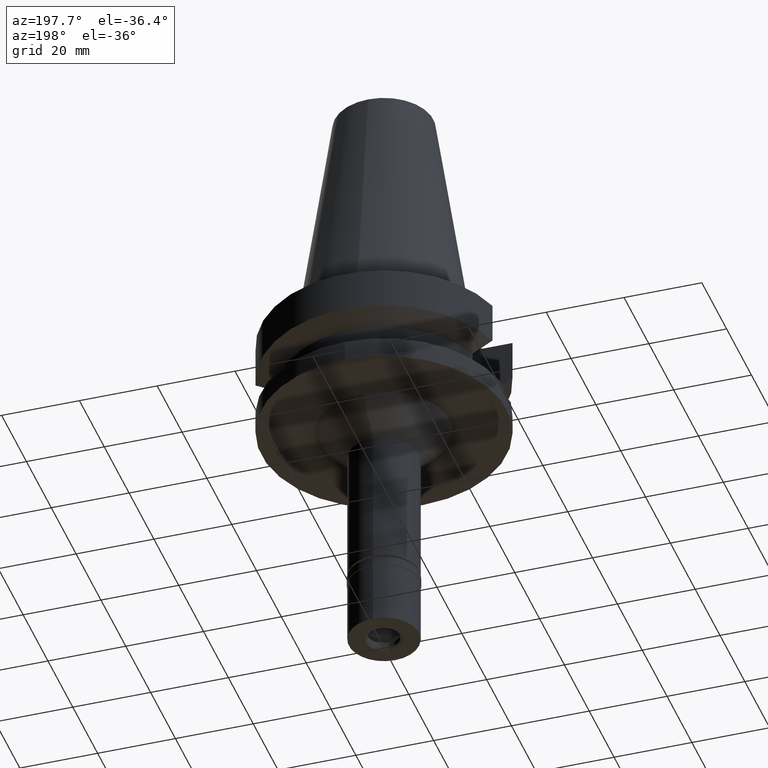
[diagram: clean part render]
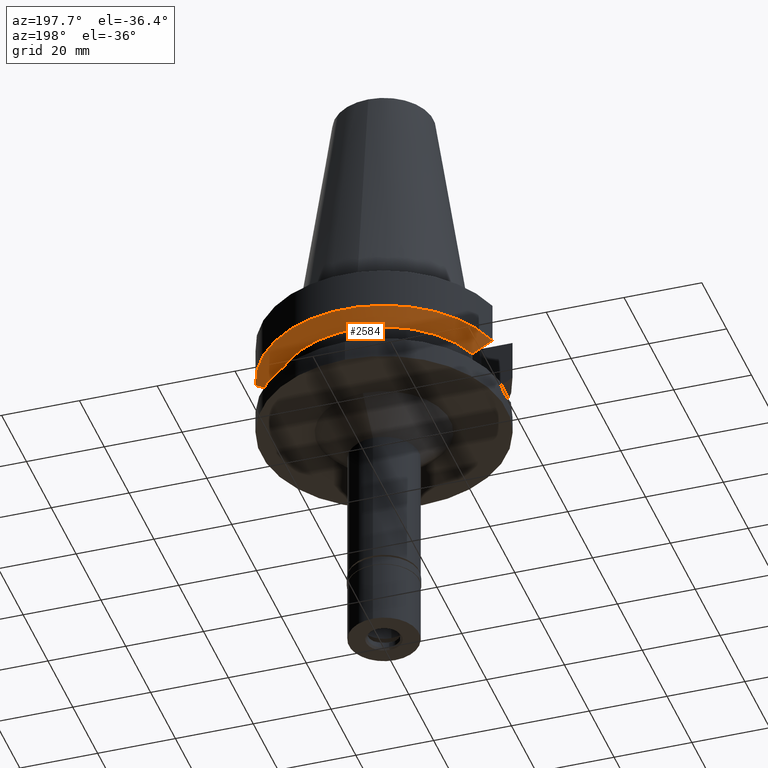
[diagram: same view with one face highlighted and labeled with its STEP entity id]
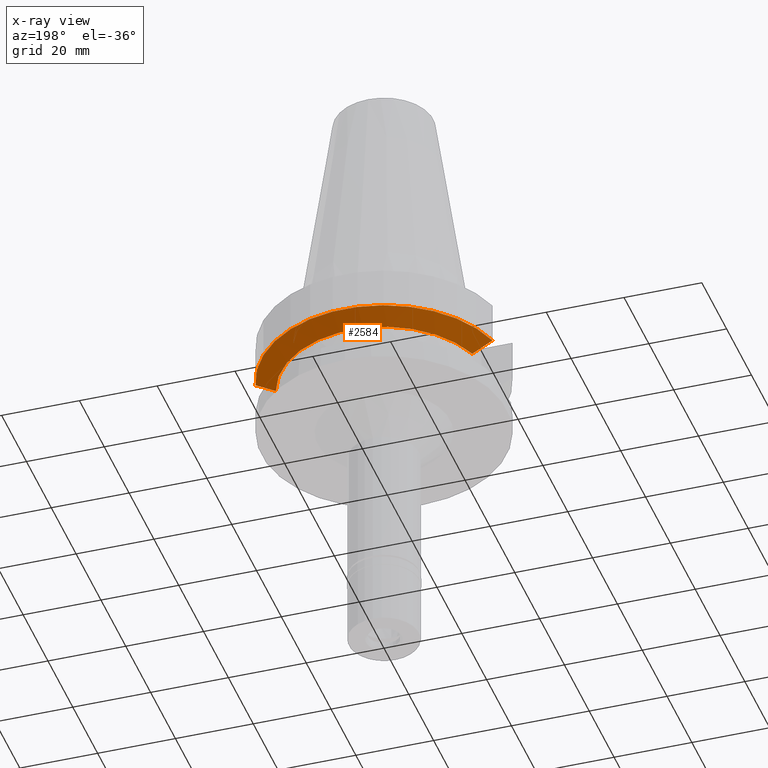
[diagram: x-ray of the same camera — body ghosted, the highlighted face saturated]
A machine part, auxiliary view. The second image highlights one B-rep face of the part: STEP entity #2584.
The next image is the same camera in x-ray: the body ghosted, the highlighted face saturated — about 0% of this face is hidden behind the body in this view.
In plain terms, the highlighted conical surface has half-angle 60 deg.
Its self-contained STEP definition (entity closure, byte-faithful):
#249 = CARTESIAN_POINT ( 'NONE',  ( 30.45402291393999761, 8.049999276842999762, -11.56551216599000043 ) ) ;
#349 = AXIS2_PLACEMENT_3D ( 'NONE', #1266, #1037, #1082 ) ;
#376 = FACE_OUTER_BOUND ( 'NONE', #2351, .T. ) ;
#421 = CARTESIAN_POINT ( 'NONE',  ( -26.83758143443306565, 8.050003172647581806, -13.57772737971592747 ) ) ;
#474 = VERTEX_POINT ( 'NONE', #1236 ) ;
#483 = CARTESIAN_POINT ( 'NONE',  ( -25.24772216434000072, 8.050001584611999661, -14.45224489077999941 ) ) ;
#512 = EDGE_CURVE ( 'NONE', #2212, #1866, #2327, .T. ) ;
#518 = DIRECTION ( 'NONE',  ( 0.0000000000000000000, 1.000000000000000000, 0.0000000000000000000 ) ) ;
#539 = CARTESIAN_POINT ( 'NONE',  ( 26.83754614138751649, 8.049990817311602598, -13.57774889203567881 ) ) ;
#606 = VERTEX_POINT ( 'NONE', #2382 ) ;
#630 = CARTESIAN_POINT ( 'NONE',  ( -30.45402162707999949, 8.050004145194000316, -11.56546831452999946 ) ) ;
#756 = CARTESIAN_POINT ( 'NONE',  ( 28.57292327237102114, 8.049998554625556579, -12.61549606574215865 ) ) ;
#933 = ORIENTED_EDGE ( 'NONE', *, *, #2402, .T. ) ;
#950 = EDGE_CURVE ( 'NONE', #474, #606, #1621, .T. ) ;
#980 = CARTESIAN_POINT ( 'NONE',  ( 0.0000000000000000000, 1.065333950388000029E-14, -11.56550565266999975 ) ) ;
#1037 = DIRECTION ( 'NONE',  ( 0.0000000000000000000, 0.0000000000000000000, -1.000000000000000000 ) ) ;
#1062 = AXIS2_PLACEMENT_3D ( 'NONE', #980, #1906, #518 ) ;
#1082 = DIRECTION ( 'NONE',  ( -0.9527442516822307583, 0.3037735849057093818, 0.0000000000000000000 ) ) ;
#1112 = ORIENTED_EDGE ( 'NONE', *, *, #950, .F. ) ;
#1192 = CARTESIAN_POINT ( 'NONE',  ( 30.45402291393999761, 8.049999276842999762, -11.56551216599000043 ) ) ;
#1236 = CARTESIAN_POINT ( 'NONE',  ( -25.24772216434000072, 8.050001584611999661, -14.45224489077999941 ) ) ;
#1266 = CARTESIAN_POINT ( 'NONE',  ( 0.0000000000000000000, 1.065333950388000029E-14, -14.45225699861000024 ) ) ;
#1277 = DIRECTION ( 'NONE',  ( 0.0000000000000000000, 0.0000000000000000000, 1.000000000000000000 ) ) ;
#1328 = CARTESIAN_POINT ( 'NONE',  ( -28.57295866802980910, 8.050008285351609061, -12.61547482854027891 ) ) ;
#1526 = B_SPLINE_CURVE_WITH_KNOTS ( 'NONE', 3,
 ( #483, #421, #1328, #2724 ),
 .UNSPECIFIED., .F., .F.,
 ( 4, 4 ),
 ( 0.0000000000000000000, 1.000000000000000000 ),
 .UNSPECIFIED. ) ;
#1621 = CIRCLE ( 'NONE', #349, 26.50000000000000711 ) ;
#1723 = AXIS2_PLACEMENT_3D ( 'NONE', #2352, #1277, #2170 ) ;
#1866 = VERTEX_POINT ( 'NONE', #630 ) ;
#1906 = DIRECTION ( 'NONE',  ( 0.0000000000000000000, 0.0000000000000000000, 1.000000000000000000 ) ) ;
#1921 = ORIENTED_EDGE ( 'NONE', *, *, #2310, .T. ) ;
#2153 = B_SPLINE_CURVE_WITH_KNOTS ( 'NONE', 3,
 ( #1192, #756, #539, #2762 ),
 .UNSPECIFIED., .F., .F.,
 ( 4, 4 ),
 ( 0.0000000000000000000, 1.000000000000000000 ),
 .UNSPECIFIED. ) ;
#2170 = DIRECTION ( 'NONE',  ( 0.0000000000000000000, 1.000000000000000000, 0.0000000000000000000 ) ) ;
#2212 = VERTEX_POINT ( 'NONE', #249 ) ;
#2310 = EDGE_CURVE ( 'NONE', #474, #1866, #1526, .T. ) ;
#2327 = CIRCLE ( 'NONE', #1062, 31.50000000000000000 ) ;
#2351 = EDGE_LOOP ( 'NONE', ( #2613, #933, #1112, #1921 ) ) ;
#2352 = CARTESIAN_POINT ( 'NONE',  ( 0.0000000000000000000, 1.065333950388000029E-14, -13.00888132564000088 ) ) ;
#2382 = CARTESIAN_POINT ( 'NONE',  ( 25.24772413187000097, 8.049995413733999072, -14.45229204367000087 ) ) ;
#2402 = EDGE_CURVE ( 'NONE', #2212, #606, #2153, .T. ) ;
#2584 = ADVANCED_FACE ( 'NONE', ( #376 ), #2614, .T. ) ;
#2613 = ORIENTED_EDGE ( 'NONE', *, *, #512, .F. ) ;
#2614 = CONICAL_SURFACE ( 'NONE', #1723, 29.00000000000000000, 1.047197551196400456 ) ;
#2724 = CARTESIAN_POINT ( 'NONE',  ( -30.45402162707999949, 8.050004145194000316, -11.56546831452999946 ) ) ;
#2762 = CARTESIAN_POINT ( 'NONE',  ( 25.24772413187000097, 8.049995413733999072, -14.45229204367000087 ) ) ;